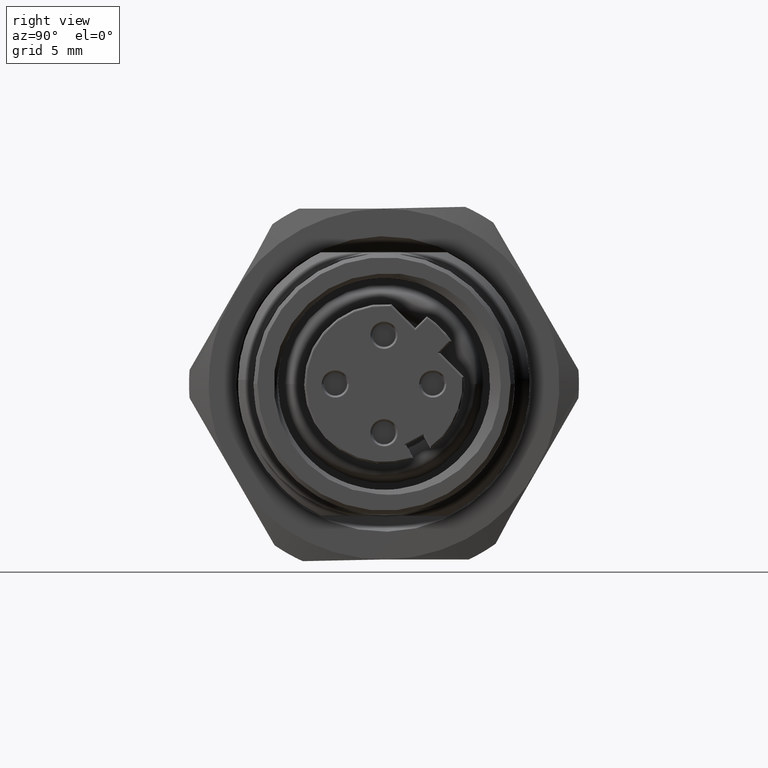
[diagram: clean part render]
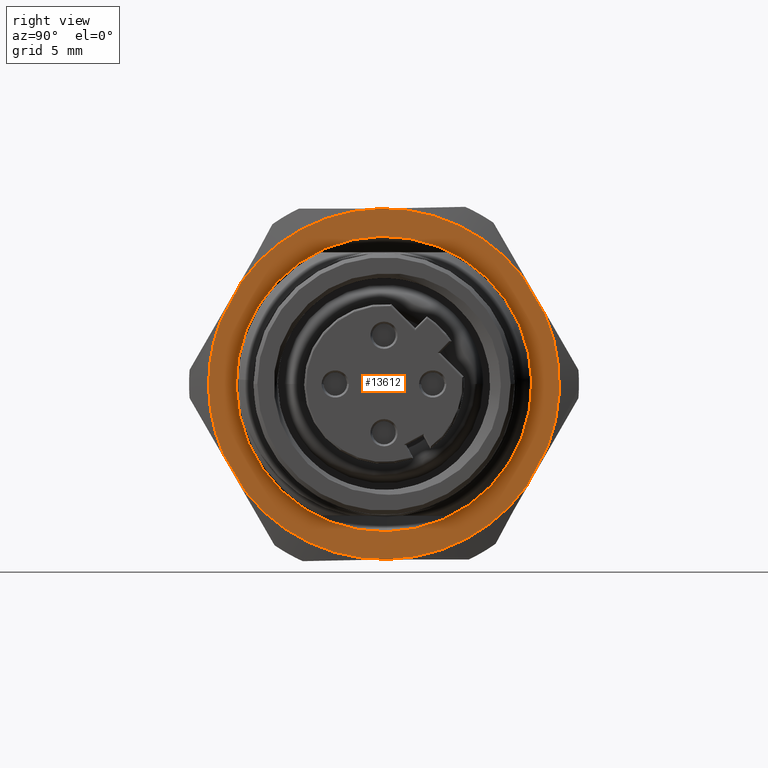
[diagram: same view with one face highlighted and labeled with its STEP entity id]
A machine part, right view. The second image highlights one B-rep face of the part: STEP entity #13612.
In plain terms, the highlighted planar face has unit normal (1, 0, 0).
Its self-contained STEP definition (entity closure, byte-faithful):
#2136=CARTESIAN_POINT('',(1.889763779528E-1,3.255473012261E-1,
1.398899773567E-1));
#2323=CARTESIAN_POINT('',(1.889763779528E-1,2.791189988976E-1,
2.182723884391E-1));
#2325=CARTESIAN_POINT('',(1.889763779528E-1,-7.340229251507E-3,
3.542546712960E-1));
#2333=CARTESIAN_POINT('',(1.889763779528E-1,0.E0,0.E0));
#2334=DIRECTION('',(-1.E0,0.E0,0.E0));
#2335=DIRECTION('',(0.E0,9.187668279050E-1,3.948006027622E-1));
#2336=AXIS2_PLACEMENT_3D('',#2333,#2334,#2335);
#2338=DIRECTION('',(2.406878973919E-14,-4.735585235889E-1,-8.807623542911E-1));
#2339=VECTOR('',#2338,9.110098585739E-2);
#2340=CARTESIAN_POINT('',(1.889763779528E-1,3.310624988818E-1,
-1.262848879900E-1));
#2341=LINE('',#2340,#2339);
#2342=CARTESIAN_POINT('',(1.889763779528E-1,0.E0,0.E0));
#2343=DIRECTION('',(-1.E0,0.E0,0.E0));
#2344=DIRECTION('',(0.E0,8.125766225834E-1,-5.828543835565E-1));
#2345=AXIS2_PLACEMENT_3D('',#2342,#2343,#2344);
#2347=CARTESIAN_POINT('',(1.889763779528E-1,0.E0,0.E0));
#2348=DIRECTION('',(-1.E0,0.E0,0.E0));
#2349=DIRECTION('',(0.E0,2.071575810982E-2,-9.997854056576E-1));
#2350=AXIS2_PLACEMENT_3D('',#2347,#2348,#2349);
#2352=DIRECTION('',(2.285011684101E-14,-5.096355642211E-1,8.603903716808E-1));
#2353=VECTOR('',#2352,9.110098585739E-2);
#2354=CARTESIAN_POINT('',(1.889763779528E-1,-2.791189988976E-1,
-2.182723884391E-1));
#2355=LINE('',#2354,#2353);
#2356=CARTESIAN_POINT('',(1.889763779528E-1,0.E0,0.E0));
#2357=DIRECTION('',(-1.E0,0.E0,0.E0));
#2358=DIRECTION('',(0.E0,-9.187668279048E-1,-3.948006027626E-1));
#2359=AXIS2_PLACEMENT_3D('',#2356,#2357,#2358);
#2361=CARTESIAN_POINT('',(1.889763779528E-1,0.E0,0.E0));
#2362=DIRECTION('',(-1.E0,0.E0,0.E0));
#2363=DIRECTION('',(0.E0,-9.997854056576E-1,-2.071575810982E-2));
#2364=AXIS2_PLACEMENT_3D('',#2361,#2362,#2363);
#2366=DIRECTION('',(2.406878973919E-14,4.735585235889E-1,8.807623542911E-1));
#2367=VECTOR('',#2366,9.110098585739E-2);
#2368=CARTESIAN_POINT('',(1.889763779528E-1,-3.310624988818E-1,
1.262848879900E-1));
#2369=LINE('',#2368,#2367);
#2370=CARTESIAN_POINT('',(1.889763779528E-1,0.E0,0.E0));
#2371=DIRECTION('',(-1.E0,0.E0,0.E0));
#2372=DIRECTION('',(0.E0,-8.125766225834E-1,5.828543835565E-1));
#2373=AXIS2_PLACEMENT_3D('',#2370,#2371,#2372);
#2375=CARTESIAN_POINT('',(1.889763779528E-1,0.E0,0.E0));
#2376=DIRECTION('',(-1.E0,0.E0,0.E0));
#2377=DIRECTION('',(0.E0,-2.071575810982E-2,9.997854056576E-1));
#2378=AXIS2_PLACEMENT_3D('',#2375,#2376,#2377);
#2380=DIRECTION('',(2.315478506554E-14,5.096355642211E-1,-8.603903716808E-1));
#2381=VECTOR('',#2380,9.110098585743E-2);
#2382=CARTESIAN_POINT('',(1.889763779528E-1,2.791189988976E-1,
2.182723884391E-1));
#2383=LINE('',#2382,#2381);
#2384=CARTESIAN_POINT('',(1.889763779528E-1,0.E0,0.E0));
#2385=DIRECTION('',(1.E0,0.E0,0.E0));
#2386=DIRECTION('',(0.E0,-2.071575810982E-2,9.997854056576E-1));
#2387=AXIS2_PLACEMENT_3D('',#2384,#2385,#2386);
#2389=CARTESIAN_POINT('',(1.889763779528E-1,0.E0,0.E0));
#2390=DIRECTION('',(1.E0,0.E0,0.E0));
#2391=DIRECTION('',(0.E0,2.071575810982E-2,-9.997854056576E-1));
#2392=AXIS2_PLACEMENT_3D('',#2389,#2390,#2391);
#10910=VERTEX_POINT('',#2325);
#10913=VERTEX_POINT('',#2136);
#10915=VERTEX_POINT('',#2323);
#10924=CARTESIAN_POINT('',(1.889763779528E-1,-3.542546712960E-1,
-7.340229251511E-3));
#10925=CARTESIAN_POINT('',(1.889763779528E-1,-3.310624988818E-1,
1.262848879900E-1));
#10926=VERTEX_POINT('',#10924);
#10927=VERTEX_POINT('',#10925);
#10928=CARTESIAN_POINT('',(1.889763779528E-1,-3.255473012261E-1,
-1.398899773568E-1));
#10929=VERTEX_POINT('',#10928);
#10940=CARTESIAN_POINT('',(1.889763779528E-1,3.310624988818E-1,
-1.262848879900E-1));
#10941=VERTEX_POINT('',#10940);
#10942=CARTESIAN_POINT('',(1.889763779528E-1,2.879208505217E-1,
-2.065232067720E-1));
#10943=VERTEX_POINT('',#10942);
#10944=CARTESIAN_POINT('',(1.889763779528E-1,7.340229251510E-3,
-3.542546712960E-1));
#10945=VERTEX_POINT('',#10944);
#10946=CARTESIAN_POINT('',(1.889763779528E-1,-2.791189988976E-1,
-2.182723884391E-1));
#10947=VERTEX_POINT('',#10946);
#10948=CARTESIAN_POINT('',(1.889763779528E-1,-2.879208505217E-1,
2.065232067720E-1));
#10949=VERTEX_POINT('',#10948);
#10950=CARTESIAN_POINT('',(1.889763779528E-1,-6.182104191829E-3,
2.983611564915E-1));
#10951=CARTESIAN_POINT('',(1.889763779528E-1,6.182104191829E-3,
-2.983611564915E-1));
#10952=VERTEX_POINT('',#10950);
#10953=VERTEX_POINT('',#10951);
#13585=CARTESIAN_POINT('',(1.889763779528E-1,-5.115191636712E-8,
-1.059878323995E-9));
#13586=DIRECTION('',(1.E0,0.E0,0.E0));
#13587=DIRECTION('',(0.E0,2.071575810976E-2,-9.997854056576E-1));
#13588=AXIS2_PLACEMENT_3D('',#13585,#13586,#13587);
#13589=PLANE('',#13588);
#13590=ORIENTED_EDGE('',*,*,#13362,.T.);
#13591=ORIENTED_EDGE('',*,*,#13377,.T.);
#13593=ORIENTED_EDGE('',*,*,#13592,.T.);
#13595=ORIENTED_EDGE('',*,*,#13594,.T.);
#13596=ORIENTED_EDGE('',*,*,#13446,.T.);
#13598=ORIENTED_EDGE('',*,*,#13597,.T.);
#13600=ORIENTED_EDGE('',*,*,#13599,.T.);
#13601=ORIENTED_EDGE('',*,*,#13487,.T.);
#13603=ORIENTED_EDGE('',*,*,#13602,.T.);
#13604=ORIENTED_EDGE('',*,*,#13579,.T.);
#13605=ORIENTED_EDGE('',*,*,#13341,.T.);
#13606=EDGE_LOOP('',(#13590,#13591,#13593,#13595,#13596,#13598,#13600,#13601,
#13603,#13604,#13605));
#13607=FACE_OUTER_BOUND('',#13606,.F.);
#13608=ORIENTED_EDGE('',*,*,#12170,.T.);
#13609=ORIENTED_EDGE('',*,*,#12644,.T.);
#13610=EDGE_LOOP('',(#13608,#13609));
#13611=FACE_BOUND('',#13610,.F.);
#13612=ADVANCED_FACE('',(#13607,#13611),#13589,.T.);
#2337=CIRCLE('',#2336,3.543307086614E-1);
#2346=CIRCLE('',#2345,3.543307086614E-1);
#2351=CIRCLE('',#2350,3.543307086614E-1);
#2360=CIRCLE('',#2359,3.543307086614E-1);
#2365=CIRCLE('',#2364,3.543307086614E-1);
#2374=CIRCLE('',#2373,3.543307086614E-1);
#2379=CIRCLE('',#2378,3.543307086614E-1);
#2388=CIRCLE('',#2387,2.984251968504E-1);
#2393=CIRCLE('',#2392,2.984251968504E-1);
#12170=EDGE_CURVE('',#10952,#10953,#2388,.T.);
#12644=EDGE_CURVE('',#10953,#10952,#2393,.T.);
#13341=EDGE_CURVE('',#10915,#10913,#2383,.T.);
#13362=EDGE_CURVE('',#10913,#10941,#2337,.T.);
#13377=EDGE_CURVE('',#10941,#10943,#2341,.T.);
#13446=EDGE_CURVE('',#10947,#10929,#2355,.T.);
#13487=EDGE_CURVE('',#10927,#10949,#2369,.T.);
#13579=EDGE_CURVE('',#10910,#10915,#2379,.T.);
#13592=EDGE_CURVE('',#10943,#10945,#2346,.T.);
#13594=EDGE_CURVE('',#10945,#10947,#2351,.T.);
#13597=EDGE_CURVE('',#10929,#10926,#2360,.T.);
#13599=EDGE_CURVE('',#10926,#10927,#2365,.T.);
#13602=EDGE_CURVE('',#10949,#10910,#2374,.T.);